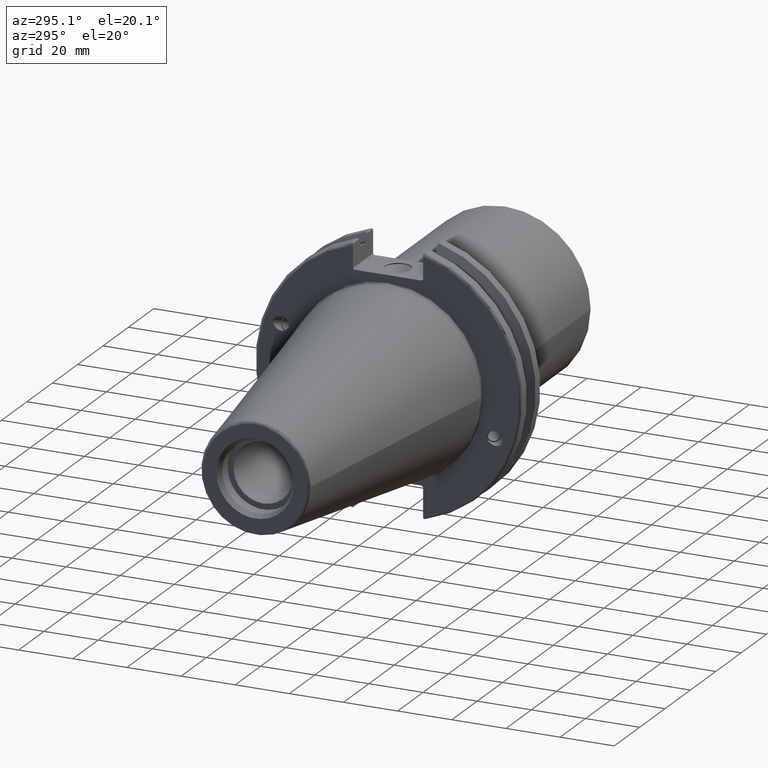
[diagram: clean part render]
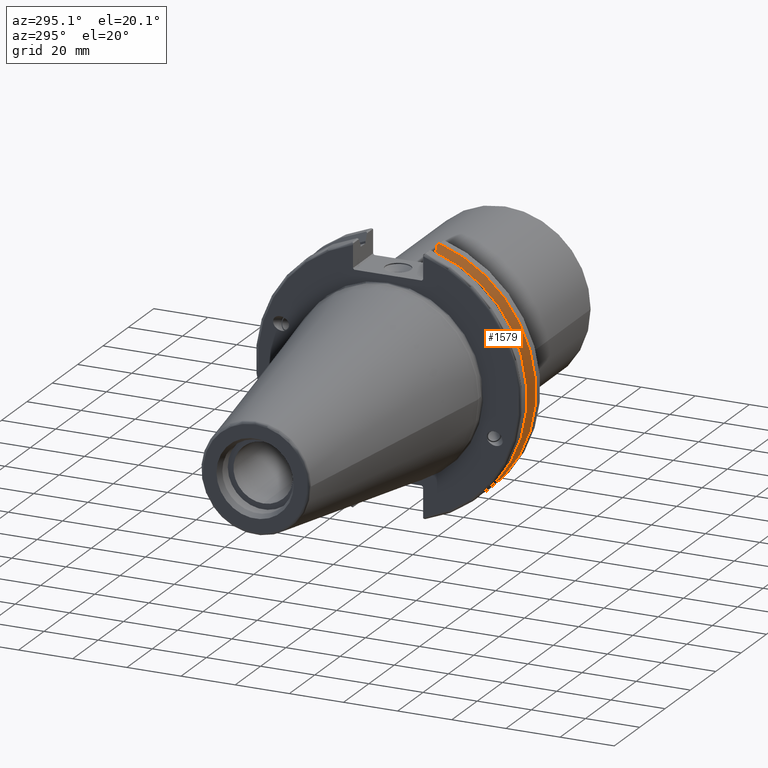
[diagram: same view with one face highlighted and labeled with its STEP entity id]
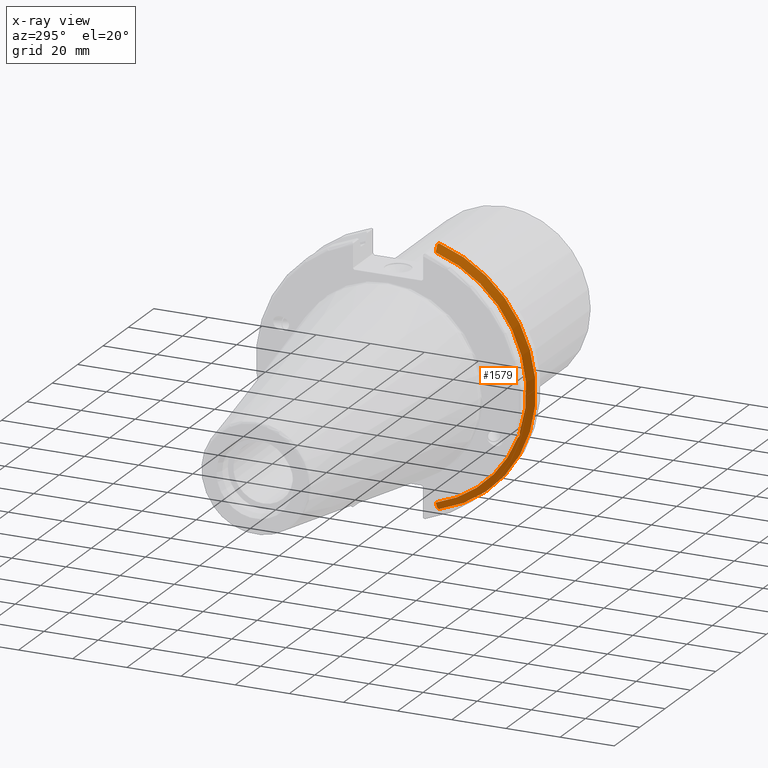
[diagram: x-ray of the same camera — body ghosted, the highlighted face saturated]
A machine part, auxiliary view. The second image highlights one B-rep face of the part: STEP entity #1579.
The next image is the same camera in x-ray: the body ghosted, the highlighted face saturated — about 0% of this face is hidden behind the body in this view.
In plain terms, the highlighted conical surface has half-angle 60 deg.
Its self-contained STEP definition (entity closure, byte-faithful):
#15=(
BOUNDED_CURVE()
B_SPLINE_CURVE(2,(#2808,#2809,#2810),.UNSPECIFIED.,.F.,.F.)
B_SPLINE_CURVE_WITH_KNOTS((3,3),(0.,0.275823910673016),.UNSPECIFIED.)
CURVE()
GEOMETRIC_REPRESENTATION_ITEM()
RATIONAL_B_SPLINE_CURVE((1.,1.00038235574188,1.00012873636688))
REPRESENTATION_ITEM('')
);
#16=(
BOUNDED_CURVE()
B_SPLINE_CURVE(2,(#2812,#2813,#2814),.UNSPECIFIED.,.F.,.F.)
B_SPLINE_CURVE_WITH_KNOTS((3,3),(0.,0.064824047289736),.UNSPECIFIED.)
CURVE()
GEOMETRIC_REPRESENTATION_ITEM()
RATIONAL_B_SPLINE_CURVE((1.,1.00011477674827,1.00019140645933))
REPRESENTATION_ITEM('')
);
#17=(
BOUNDED_CURVE()
B_SPLINE_CURVE(2,(#2818,#2819,#2820),.UNSPECIFIED.,.F.,.F.)
B_SPLINE_CURVE_WITH_KNOTS((3,3),(0.325260944932422,0.390084992222201),
 .UNSPECIFIED.)
CURVE()
GEOMETRIC_REPRESENTATION_ITEM()
RATIONAL_B_SPLINE_CURVE((1.00019140645968,1.00011477674848,1.))
REPRESENTATION_ITEM('')
);
#18=(
BOUNDED_CURVE()
B_SPLINE_CURVE(2,(#2822,#2823,#2824),.UNSPECIFIED.,.F.,.F.)
B_SPLINE_CURVE_WITH_KNOTS((3,3),(0.0558332664513841,0.331657177124504),
 .UNSPECIFIED.)
CURVE()
GEOMETRIC_REPRESENTATION_ITEM()
RATIONAL_B_SPLINE_CURVE((1.0001287363678,1.00038235574463,1.))
REPRESENTATION_ITEM('')
);
#47=CONICAL_SURFACE('',#1727,47.8172386482472,1.0471975511966);
#149=FACE_OUTER_BOUND('',#256,.T.);
#256=EDGE_LOOP('',(#1189,#1190,#1191,#1192,#1193,#1194,#1195,#1196,#1197));
#346=B_SPLINE_CURVE_WITH_KNOTS('',3,(#2717,#2718,#2719,#2720,#2721,#2722,
#2723,#2724),.UNSPECIFIED.,.F.,.F.,(4,2,2,4),(0.42671286835872,0.441644498666905,
0.480313313223129,0.518982127779353),.UNSPECIFIED.);
#350=B_SPLINE_CURVE_WITH_KNOTS('',3,(#2779,#2780,#2781,#2782,#2783,#2784,
#2785,#2786),.UNSPECIFIED.,.F.,.F.,(4,2,2,4),(0.518982127779353,0.557650942335576,
0.5963197568918,0.611251387199986),.UNSPECIFIED.);
#597=CIRCLE('',#1728,46.4219772964944);
#598=CIRCLE('',#1729,49.2125);
#599=CIRCLE('',#1730,46.4219772964944);
#697=VERTEX_POINT('',#2714);
#698=VERTEX_POINT('',#2716);
#705=VERTEX_POINT('',#2777);
#711=VERTEX_POINT('',#2805);
#712=VERTEX_POINT('',#2807);
#713=VERTEX_POINT('',#2811);
#714=VERTEX_POINT('',#2815);
#715=VERTEX_POINT('',#2817);
#716=VERTEX_POINT('',#2821);
#875=EDGE_CURVE('',#698,#697,#346,.T.);
#883=EDGE_CURVE('',#697,#705,#350,.T.);
#891=EDGE_CURVE('',#705,#711,#597,.T.);
#892=EDGE_CURVE('',#711,#712,#15,.T.);
#893=EDGE_CURVE('',#713,#712,#16,.T.);
#894=EDGE_CURVE('',#714,#713,#598,.T.);
#895=EDGE_CURVE('',#715,#714,#17,.T.);
#896=EDGE_CURVE('',#715,#716,#18,.T.);
#897=EDGE_CURVE('',#716,#698,#599,.T.);
#1189=ORIENTED_EDGE('',*,*,#875,.T.);
#1190=ORIENTED_EDGE('',*,*,#883,.T.);
#1191=ORIENTED_EDGE('',*,*,#891,.T.);
#1192=ORIENTED_EDGE('',*,*,#892,.T.);
#1193=ORIENTED_EDGE('',*,*,#893,.F.);
#1194=ORIENTED_EDGE('',*,*,#894,.F.);
#1195=ORIENTED_EDGE('',*,*,#895,.F.);
#1196=ORIENTED_EDGE('',*,*,#896,.T.);
#1197=ORIENTED_EDGE('',*,*,#897,.T.);
#1579=ADVANCED_FACE('',(#149),#47,.T.);
#1727=AXIS2_PLACEMENT_3D('',#2804,#1993,#1994);
#1728=AXIS2_PLACEMENT_3D('',#2806,#1995,#1996);
#1729=AXIS2_PLACEMENT_3D('',#2816,#1997,#1998);
#1730=AXIS2_PLACEMENT_3D('',#2825,#1999,#2000);
#1993=DIRECTION('center_axis',(1.,0.,0.));
#1994=DIRECTION('ref_axis',(0.,-1.,-1.22464679914735E-16));
#1995=DIRECTION('center_axis',(1.,0.,0.));
#1996=DIRECTION('ref_axis',(0.,0.,-1.));
#1997=DIRECTION('center_axis',(1.,0.,0.));
#1998=DIRECTION('ref_axis',(0.,0.,-1.));
#1999=DIRECTION('center_axis',(1.,0.,0.));
#2000=DIRECTION('ref_axis',(0.,0.,-1.));
#2714=CARTESIAN_POINT('',(13.2341,-43.923494649906,-15.9868446375166));
#2716=CARTESIAN_POINT('',(13.0491,-43.9096390749305,-15.0646464421033));
#2717=CARTESIAN_POINT('Ctrl Pts',(13.0491,-43.9096390749305,-15.0646464421033));
#2718=CARTESIAN_POINT('Ctrl Pts',(13.0660815609661,-43.9250360001461,-15.1104047527575));
#2719=CARTESIAN_POINT('Ctrl Pts',(13.0821132459668,-43.9385582852181,-15.1564111356409));
#2720=CARTESIAN_POINT('Ctrl Pts',(13.1358132615496,-43.9797830409459,-15.3217566390708));
#2721=CARTESIAN_POINT('Ctrl Pts',(13.1719838933644,-43.9989016655819,-15.4570249042868));
#2722=CARTESIAN_POINT('Ctrl Pts',(13.2212913174802,-43.9931221605126,-15.7289849146254));
#2723=CARTESIAN_POINT('Ctrl Pts',(13.2341,-43.9675796948952,-15.8657219718732));
#2724=CARTESIAN_POINT('Ctrl Pts',(13.2341,-43.923494649906,-15.9868446375166));
#2777=CARTESIAN_POINT('',(13.0491,-43.3201030900029,-16.6843832486479));
#2779=CARTESIAN_POINT('Ctrl Pts',(13.2341,-43.923494649906,-15.9868446375166));
#2780=CARTESIAN_POINT('Ctrl Pts',(13.2341,-43.8794096049169,-16.10796730316));
#2781=CARTESIAN_POINT('Ctrl Pts',(13.2212913174802,-43.8110833825828,-16.2291323464527));
#2782=CARTESIAN_POINT('Ctrl Pts',(13.1719838933644,-43.6406982153492,-16.441180795372));
#2783=CARTESIAN_POINT('Ctrl Pts',(13.1358132615496,-43.5391037343221,-16.5325130832406));
#2784=CARTESIAN_POINT('Ctrl Pts',(13.0821132459668,-43.4012416983557,-16.6326763251437));
#2785=CARTESIAN_POINT('Ctrl Pts',(13.0660815609661,-43.3613106941341,-16.6592273018006));
#2786=CARTESIAN_POINT('Ctrl Pts',(13.0491,-43.3201030900029,-16.6843832486479));
#2804=CARTESIAN_POINT('Origin',(13.8546545170244,0.,0.));
#2805=CARTESIAN_POINT('',(13.0491,-12.95,-44.5791147973604));
#2806=CARTESIAN_POINT('Origin',(13.0491,0.,0.));
#2807=CARTESIAN_POINT('',(14.3818103943757,-12.95,-46.9780755322917));
#2808=CARTESIAN_POINT('Ctrl Pts',(13.0491,-12.95,-44.5791147973604));
#2809=CARTESIAN_POINT('Ctrl Pts',(13.697995509465,-12.95,-45.7494966802572));
#2810=CARTESIAN_POINT('Ctrl Pts',(14.3818103943757,-12.95,-46.9780755322917));
#2811=CARTESIAN_POINT('',(14.6602090340487,-13.4317035994433,-47.3440544806494));
#2812=CARTESIAN_POINT('Ctrl Pts',(14.6602090340487,-13.4317035994433,-47.3440544806494));
#2813=CARTESIAN_POINT('Ctrl Pts',(14.5199310333618,-13.1896660169966,-47.1601640966265));
#2814=CARTESIAN_POINT('Ctrl Pts',(14.3818103943757,-12.95,-46.9780755322917));
#2815=CARTESIAN_POINT('',(14.6602090340487,-13.4317035994433,47.3440544806494));
#2816=CARTESIAN_POINT('Origin',(14.6602090340487,0.,0.));
#2817=CARTESIAN_POINT('',(14.3818103943757,-12.95,46.9780755322918));
#2818=CARTESIAN_POINT('Ctrl Pts',(14.3818103943757,-12.95,46.9780755322918));
#2819=CARTESIAN_POINT('Ctrl Pts',(14.5199310333618,-13.1896660169966,47.1601640966264));
#2820=CARTESIAN_POINT('Ctrl Pts',(14.6602090340487,-13.4317035994433,47.3440544806494));
#2821=CARTESIAN_POINT('',(13.0491,-12.95,44.5791147973604));
#2822=CARTESIAN_POINT('Ctrl Pts',(14.3818103943757,-12.95,46.9780755322917));
#2823=CARTESIAN_POINT('Ctrl Pts',(13.6979955094656,-12.95,45.7494966802583));
#2824=CARTESIAN_POINT('Ctrl Pts',(13.0491,-12.95,44.5791147973604));
#2825=CARTESIAN_POINT('Origin',(13.0491,0.,0.));